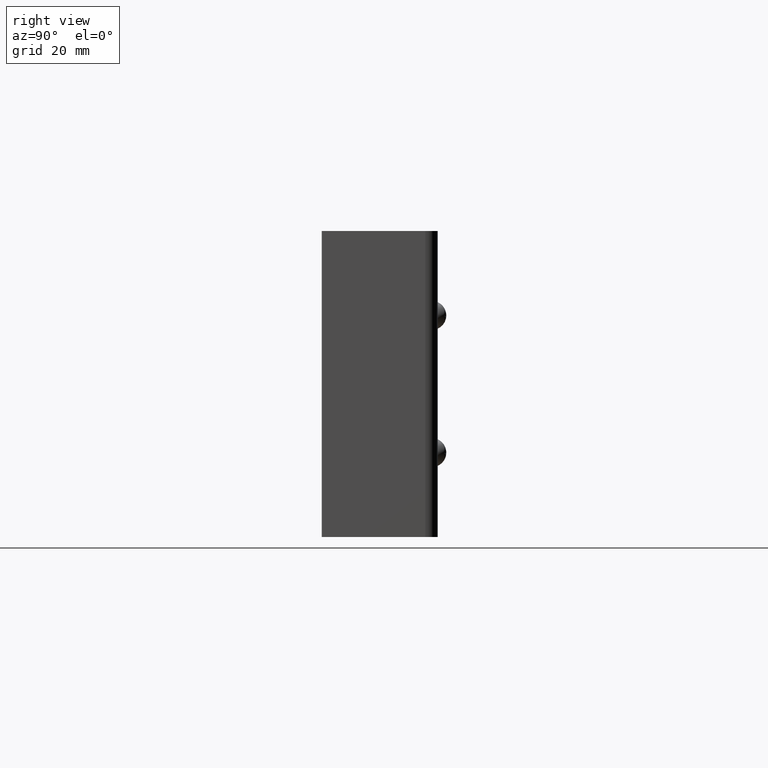
[diagram: clean part render]
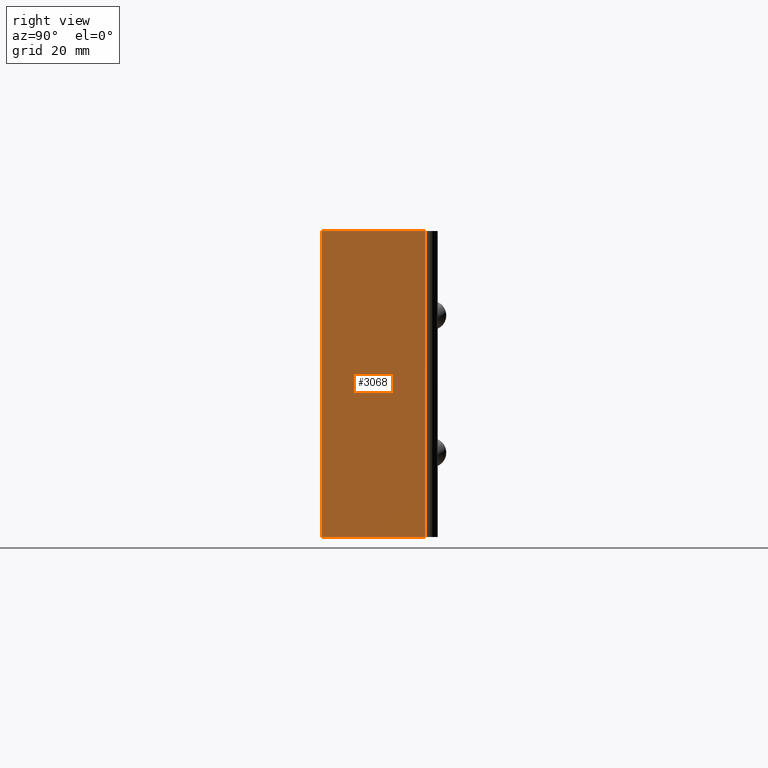
[diagram: same view with one face highlighted and labeled with its STEP entity id]
A machine part, right view. The second image highlights one B-rep face of the part: STEP entity #3068.
In plain terms, the highlighted face is a freeform B-spline surface patch.
Its self-contained STEP definition (entity closure, byte-faithful):
#2863=CARTESIAN_POINT('',(61.850000000000001,-22.0,29.0));
#2864=VERTEX_POINT('',#2863);
#2870=CARTESIAN_POINT('',(61.850000000000001,-2.400000000000000,29.0));
#2871=VERTEX_POINT('',#2870);
#2872=CARTESIAN_POINT('',(61.850000000000001,-22.0,29.0));
#2873=CARTESIAN_POINT('',(61.850000000000001,-2.400000000000000,29.0));
#2874=QUASI_UNIFORM_CURVE('',1,(#2872,#2873),.UNSPECIFIED.,.F.,.U.);
#2875=EDGE_CURVE('',#2864,#2871,#2874,.T.);
#2929=CARTESIAN_POINT('',(61.850000000000001,-2.400000000000000,-29.0));
#2930=VERTEX_POINT('',#2929);
#2944=CARTESIAN_POINT('',(61.850000000000001,-22.0,-29.0));
#2945=VERTEX_POINT('',#2944);
#2946=CARTESIAN_POINT('',(61.850000000000001,-22.0,-29.0));
#2947=CARTESIAN_POINT('',(61.850000000000001,-2.400000000000000,-29.0));
#2948=QUASI_UNIFORM_CURVE('',1,(#2946,#2947),.UNSPECIFIED.,.F.,.U.);
#2949=EDGE_CURVE('',#2945,#2930,#2948,.T.);
#3039=CARTESIAN_POINT('',(61.850000000000001,-2.400000000000000,-29.0));
#3040=CARTESIAN_POINT('',(61.850000000000001,-2.400000000000000,29.0));
#3041=QUASI_UNIFORM_CURVE('',1,(#3039,#3040),.UNSPECIFIED.,.F.,.U.);
#3042=EDGE_CURVE('',#2930,#2871,#3041,.T.);
#3053=CARTESIAN_POINT('',(61.850000000000001,-22.979019962011400,31.897099887584751));
#3054=CARTESIAN_POINT('',(61.850000000000001,-22.979019962011400,-31.897101443265981));
#3055=CARTESIAN_POINT('',(61.850000000000001,-1.420979512275636,31.897099887584751));
#3056=CARTESIAN_POINT('',(61.850000000000001,-1.420979512275636,-31.897101443265981));
#3057=B_SPLINE_SURFACE_WITH_KNOTS('',1,1,((#3053,#3055),(#3054,#3056)),.UNSPECIFIED.,.F.,.F.,.U.,(2,2),(2,2),(0.0,63.794201330850733),(0.0,21.558040449735760),.UNSPECIFIED.);
#3058=ORIENTED_EDGE('',*,*,#2875,.F.);
#3059=CARTESIAN_POINT('',(61.850000000000001,-22.0,-29.0));
#3060=CARTESIAN_POINT('',(61.850000000000001,-22.0,29.0));
#3061=QUASI_UNIFORM_CURVE('',1,(#3059,#3060),.UNSPECIFIED.,.F.,.U.);
#3062=EDGE_CURVE('',#2945,#2864,#3061,.T.);
#3063=ORIENTED_EDGE('',*,*,#3062,.F.);
#3064=ORIENTED_EDGE('',*,*,#2949,.T.);
#3065=ORIENTED_EDGE('',*,*,#3042,.T.);
#3066=EDGE_LOOP('',(#3058,#3063,#3064,#3065));
#3067=FACE_OUTER_BOUND('',#3066,.T.);
#3068=ADVANCED_FACE('',(#3067),#3057,.T.);